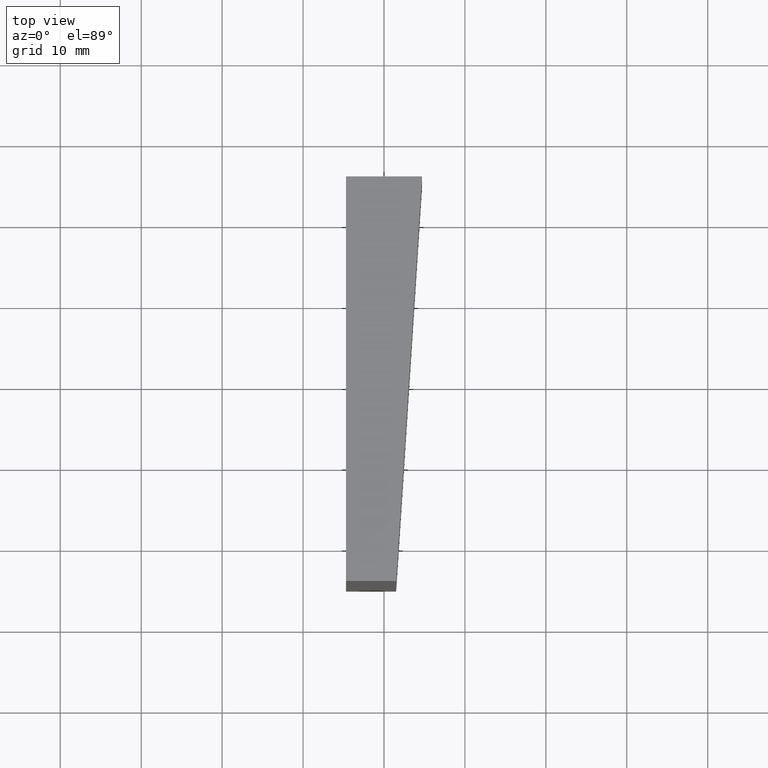
[diagram: clean part render]
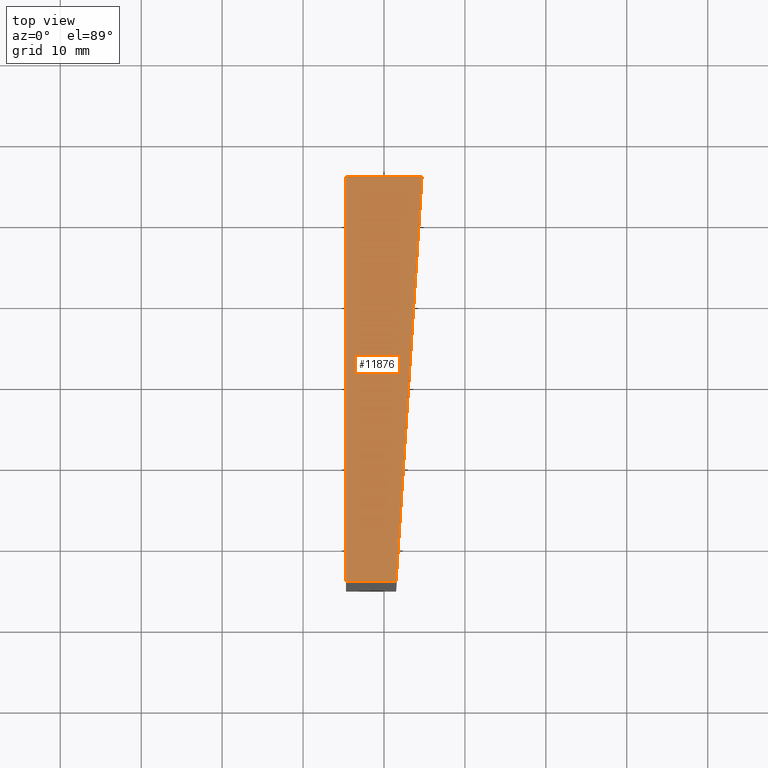
[diagram: same view with one face highlighted and labeled with its STEP entity id]
A machine part, top view. The second image highlights one B-rep face of the part: STEP entity #11876.
In plain terms, the highlighted planar face has unit normal (0, 0, -1).
Its self-contained STEP definition (entity closure, byte-faithful):
#934 = EDGE_CURVE ( 'NONE', #14269, #14847, #2680, .T. ) ;
#1508 = VERTEX_POINT ( 'NONE', #1540 ) ;
#1540 = CARTESIAN_POINT ( 'NONE',  ( 1.500000000000005773, -25.00000000000000000, 37.35000000000000142 ) ) ;
#1575 = DIRECTION ( 'NONE',  ( 0.06386932928370206430, 0.9979582700578466525, -0.000000000000000000 ) ) ;
#1655 = ORIENTED_EDGE ( 'NONE', *, *, #934, .T. ) ;
#2051 = DIRECTION ( 'NONE',  ( -1.000000000000000000, -0.000000000000000000, -0.000000000000000000 ) ) ;
#2460 = DIRECTION ( 'NONE',  ( -1.000000000000000000, 0.000000000000000000, -0.000000000000000000 ) ) ;
#2680 = LINE ( 'NONE', #15166, #11354 ) ;
#2718 = ORIENTED_EDGE ( 'NONE', *, *, #10312, .T. ) ;
#2832 = CARTESIAN_POINT ( 'NONE',  ( -4.699999999999993960, -25.00000000000000000, 37.35000000000000142 ) ) ;
#3231 = CARTESIAN_POINT ( 'NONE',  ( 1.500000000000005773, -25.00000000000000000, 37.35000000000000142 ) ) ;
#3755 = PLANE ( 'NONE',  #13523 ) ;
#4091 = EDGE_CURVE ( 'NONE', #14847, #4197, #15293, .T. ) ;
#4197 = VERTEX_POINT ( 'NONE', #9423 ) ;
#4428 = LINE ( 'NONE', #15606, #5624 ) ;
#4441 = VECTOR ( 'NONE', #8410, 1000.000000000000000 ) ;
#5624 = VECTOR ( 'NONE', #1575, 1000.000000000000114 ) ;
#5912 = EDGE_CURVE ( 'NONE', #1508, #14269, #4428, .T. ) ;
#7227 = ORIENTED_EDGE ( 'NONE', *, *, #5912, .T. ) ;
#7438 = LINE ( 'NONE', #3231, #4441 ) ;
#7800 = DIRECTION ( 'NONE',  ( 1.734723475976807094E-16, -1.000000000000000000, -0.000000000000000000 ) ) ;
#7953 = CARTESIAN_POINT ( 'NONE',  ( -4.700000000000002842, 25.00000000000000000, 37.35000000000000142 ) ) ;
#8410 = DIRECTION ( 'NONE',  ( 1.000000000000000000, -0.000000000000000000, -0.000000000000000000 ) ) ;
#9423 = CARTESIAN_POINT ( 'NONE',  ( -4.699999999999993960, -25.00000000000000000, 37.35000000000000142 ) ) ;
#10297 = CARTESIAN_POINT ( 'NONE',  ( 0.000000000000000000, 0.000000000000000000, 37.35000000000000142 ) ) ;
#10312 = EDGE_CURVE ( 'NONE', #4197, #1508, #7438, .T. ) ;
#11354 = VECTOR ( 'NONE', #2051, 1000.000000000000000 ) ;
#11876 = ADVANCED_FACE ( 'NONE', ( #15603 ), #3755, .F. ) ;
#12512 = CARTESIAN_POINT ( 'NONE',  ( 4.699999999999999289, 25.00000000000000000, 37.35000000000000142 ) ) ;
#12856 = DIRECTION ( 'NONE',  ( 0.000000000000000000, 0.000000000000000000, -1.000000000000000000 ) ) ;
#13523 = AXIS2_PLACEMENT_3D ( 'NONE', #10297, #12856, #2460 ) ;
#14269 = VERTEX_POINT ( 'NONE', #12512 ) ;
#14282 = ORIENTED_EDGE ( 'NONE', *, *, #4091, .T. ) ;
#14847 = VERTEX_POINT ( 'NONE', #7953 ) ;
#15086 = VECTOR ( 'NONE', #7800, 1000.000000000000000 ) ;
#15166 = CARTESIAN_POINT ( 'NONE',  ( -4.700000000000002842, 25.00000000000000000, 37.35000000000000142 ) ) ;
#15293 = LINE ( 'NONE', #2832, #15086 ) ;
#15603 = FACE_OUTER_BOUND ( 'NONE', #16240, .T. ) ;
#15606 = CARTESIAN_POINT ( 'NONE',  ( 4.699999999999999289, 25.00000000000000000, 37.35000000000000142 ) ) ;
#16240 = EDGE_LOOP ( 'NONE', ( #2718, #7227, #1655, #14282 ) ) ;